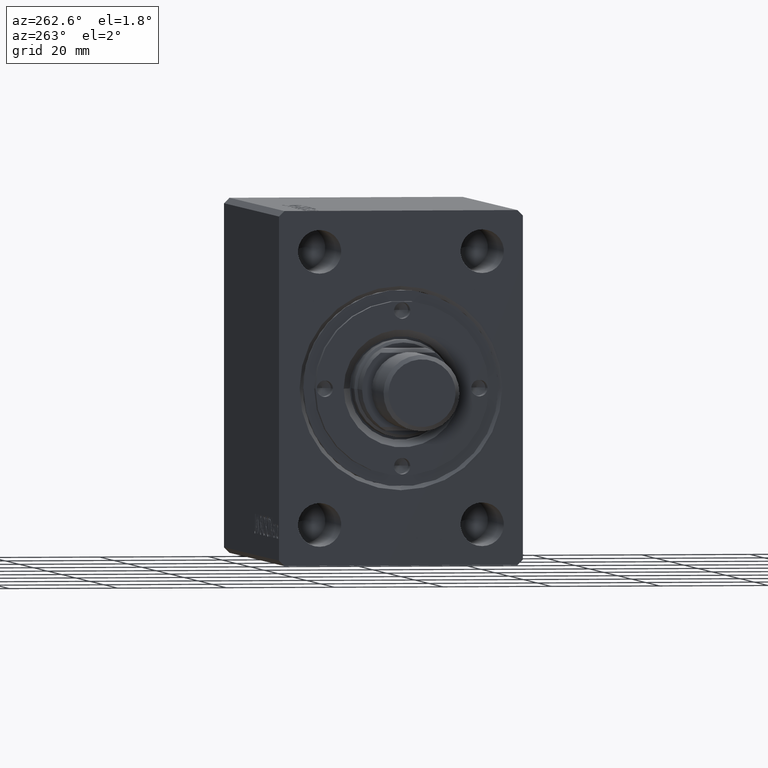
[diagram: clean part render]
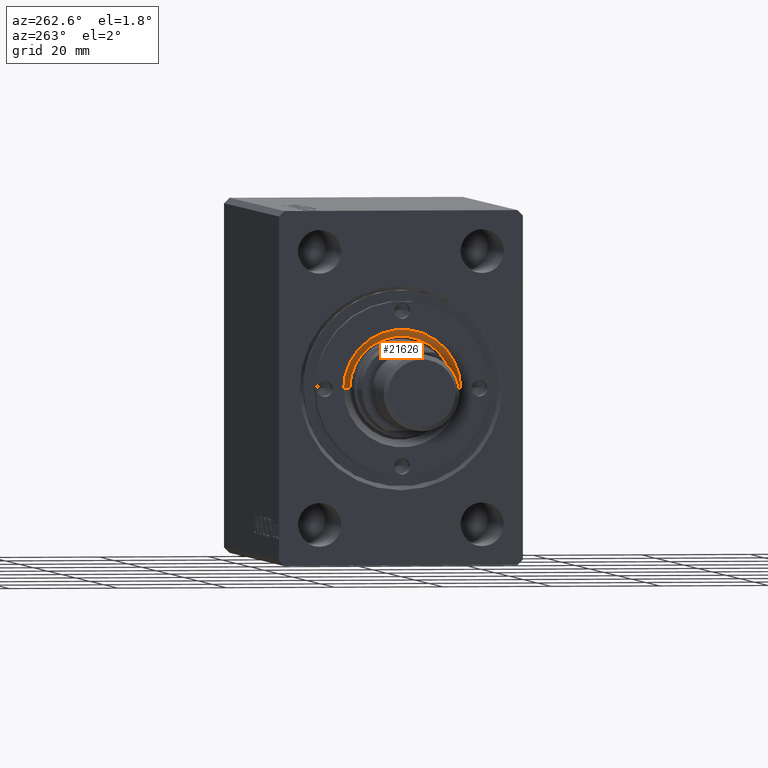
[diagram: same view with one face highlighted and labeled with its STEP entity id]
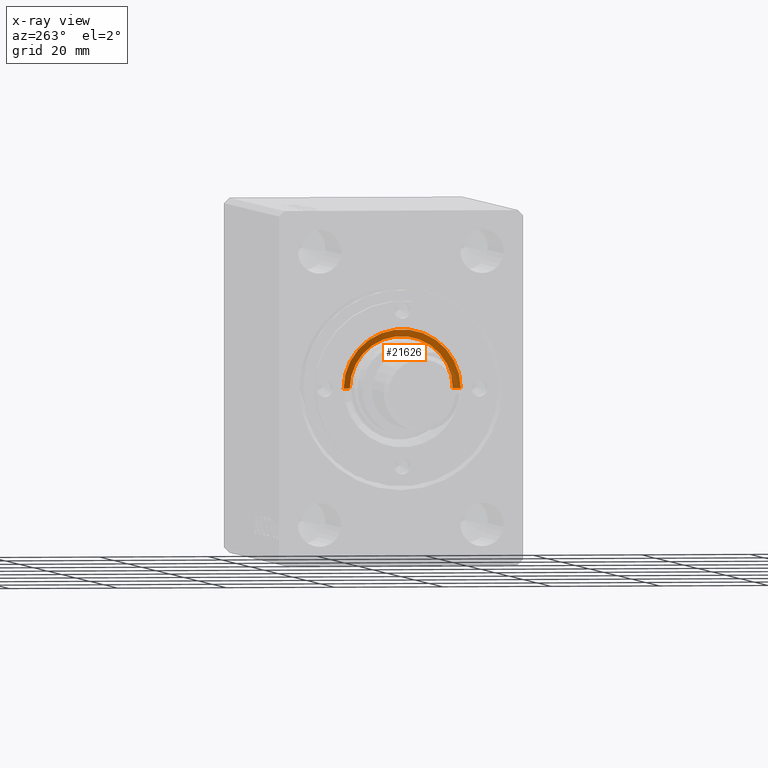
[diagram: x-ray of the same camera — body ghosted, the highlighted face saturated]
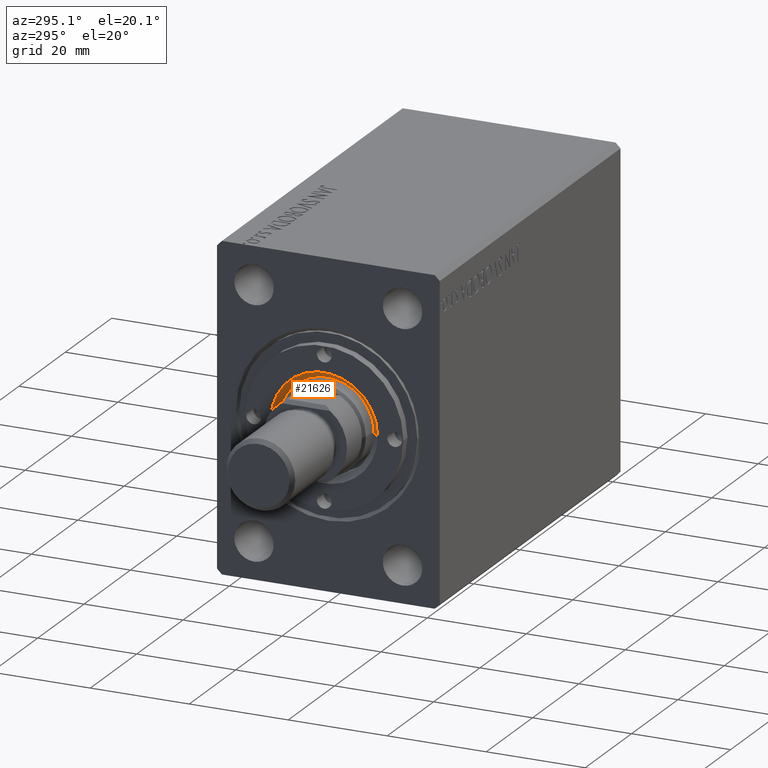
[diagram: same view with one face highlighted and labeled with its STEP entity id]
A machine part, auxiliary view. The second image highlights one B-rep face of the part: STEP entity #21626.
The next image is the same camera in x-ray: the body ghosted, the highlighted face saturated — about 8% of this face is hidden behind the body in this view.
A second angle (auxiliary view) of the same face is appended — the face is thin or edge-on in the first view.
In plain terms, the highlighted conical surface has half-angle 45 deg.
Its self-contained STEP definition (entity closure, byte-faithful):
#778 = CARTESIAN_POINT ( 'NONE',  ( 9.500000000000000000, 0.000000000000000000, 10.50000000000003730 ) ) ;
#843 = CARTESIAN_POINT ( 'NONE',  ( 8.999999999999957367, 0.000000000000000000, 10.00000000000000000 ) ) ;
#1799 = CARTESIAN_POINT ( 'NONE',  ( -9.500000000000000000, 1.163414459189985485E-15, 10.50000000000003730 ) ) ;
#4394 = CONICAL_SURFACE ( 'NONE', #21597, 8.999999999999957367, 0.7853981633974533860 ) ;
#5169 = CARTESIAN_POINT ( 'NONE',  ( 10.79999999999997584, 0.000000000000000000, 11.79999999999999893 ) ) ;
#5246 = DIRECTION ( 'NONE',  ( 1.000000000000000000, 0.000000000000000000, 0.000000000000000000 ) ) ;
#5326 = ORIENTED_EDGE ( 'NONE', *, *, #29721, .F. ) ;
#6243 = EDGE_LOOP ( 'NONE', ( #14666, #24304, #5326, #23912 ) ) ;
#8731 = CARTESIAN_POINT ( 'NONE',  ( -8.999999999999957367, 1.102182119232612784E-15, 10.00000000000000000 ) ) ;
#9384 = AXIS2_PLACEMENT_3D ( 'NONE', #10401, #24090, #37794 ) ;
#10087 = VERTEX_POINT ( 'NONE', #34614 ) ;
#10401 = CARTESIAN_POINT ( 'NONE',  ( 0.000000000000000000, 0.000000000000000000, 10.50000000000003730 ) ) ;
#12006 = CARTESIAN_POINT ( 'NONE',  ( 0.000000000000000000, 0.000000000000000000, 10.00000000000000000 ) ) ;
#12883 = DIRECTION ( 'NONE',  ( 0.000000000000000000, 0.000000000000000000, 1.000000000000000000 ) ) ;
#14666 = ORIENTED_EDGE ( 'NONE', *, *, #21785, .F. ) ;
#16577 = EDGE_CURVE ( 'NONE', #26651, #34091, #34299, .T. ) ;
#21597 = AXIS2_PLACEMENT_3D ( 'NONE', #12006, #12883, #5246 ) ;
#21626 = ADVANCED_FACE ( 'NONE', ( #36446 ), #4394, .F. ) ;
#21785 = EDGE_CURVE ( 'NONE', #34799, #26651, #23005, .T. ) ;
#23005 = CIRCLE ( 'NONE', #9384, 9.500000000000000000 ) ;
#23185 = DIRECTION ( 'NONE',  ( 1.000000000000000000, 0.000000000000000000, 0.000000000000000000 ) ) ;
#23912 = ORIENTED_EDGE ( 'NONE', *, *, #16577, .F. ) ;
#24090 = DIRECTION ( 'NONE',  ( 0.000000000000000000, 0.000000000000000000, 1.000000000000000000 ) ) ;
#24304 = ORIENTED_EDGE ( 'NONE', *, *, #37807, .T. ) ;
#26546 = CARTESIAN_POINT ( 'NONE',  ( 0.000000000000000000, 0.000000000000000000, 11.79999999999999893 ) ) ;
#26651 = VERTEX_POINT ( 'NONE', #778 ) ;
#26775 = VECTOR ( 'NONE', #28702, 1000.000000000000000 ) ;
#28702 = DIRECTION ( 'NONE',  ( -0.7071067811865512365, 8.659560562354979697E-17, 0.7071067811865439090 ) ) ;
#29721 = EDGE_CURVE ( 'NONE', #34091, #10087, #38360, .T. ) ;
#34091 = VERTEX_POINT ( 'NONE', #5169 ) ;
#34299 = LINE ( 'NONE', #843, #39418 ) ;
#34614 = CARTESIAN_POINT ( 'NONE',  ( -10.79999999999997584, 1.322618543079138535E-15, 11.79999999999999893 ) ) ;
#34770 = AXIS2_PLACEMENT_3D ( 'NONE', #26546, #40262, #23185 ) ;
#34799 = VERTEX_POINT ( 'NONE', #1799 ) ;
#36446 = FACE_OUTER_BOUND ( 'NONE', #6243, .T. ) ;
#37794 = DIRECTION ( 'NONE',  ( 1.000000000000000000, 0.000000000000000000, 0.000000000000000000 ) ) ;
#37807 = EDGE_CURVE ( 'NONE', #34799, #10087, #39495, .T. ) ;
#38360 = CIRCLE ( 'NONE', #34770, 10.79999999999997584 ) ;
#39418 = VECTOR ( 'NONE', #41490, 1000.000000000000000 ) ;
#39495 = LINE ( 'NONE', #8731, #26775 ) ;
#40262 = DIRECTION ( 'NONE',  ( -0.000000000000000000, -0.000000000000000000, -1.000000000000000000 ) ) ;
#41490 = DIRECTION ( 'NONE',  ( 0.7071067811865512365, 0.000000000000000000, 0.7071067811865439090 ) ) ;